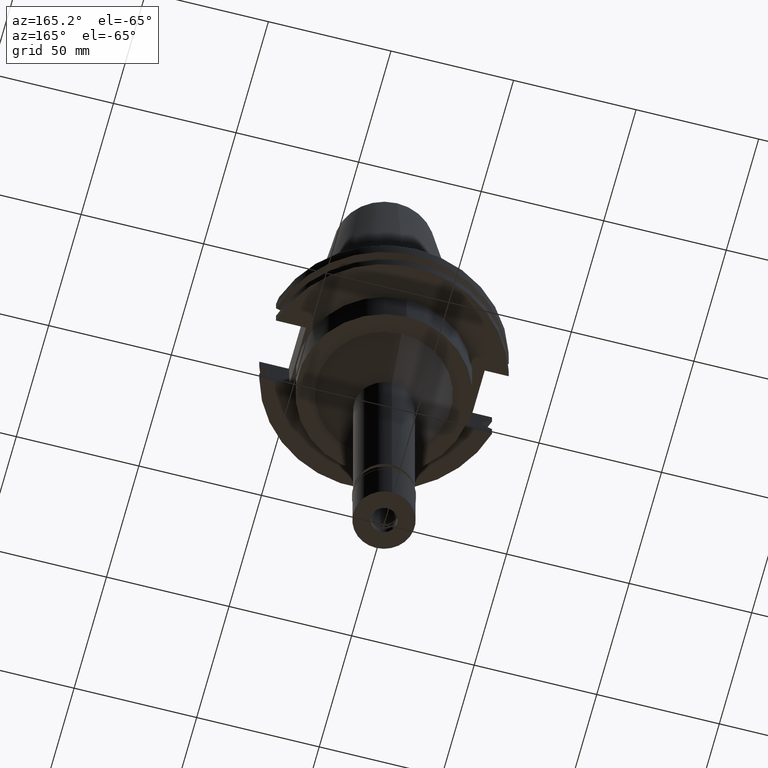
[diagram: clean part render]
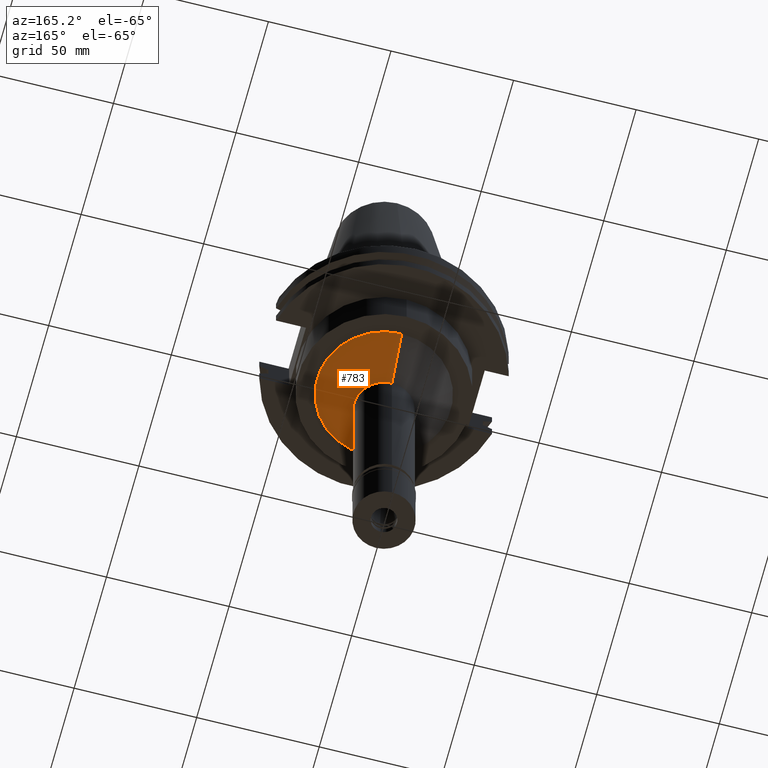
[diagram: same view with one face highlighted and labeled with its STEP entity id]
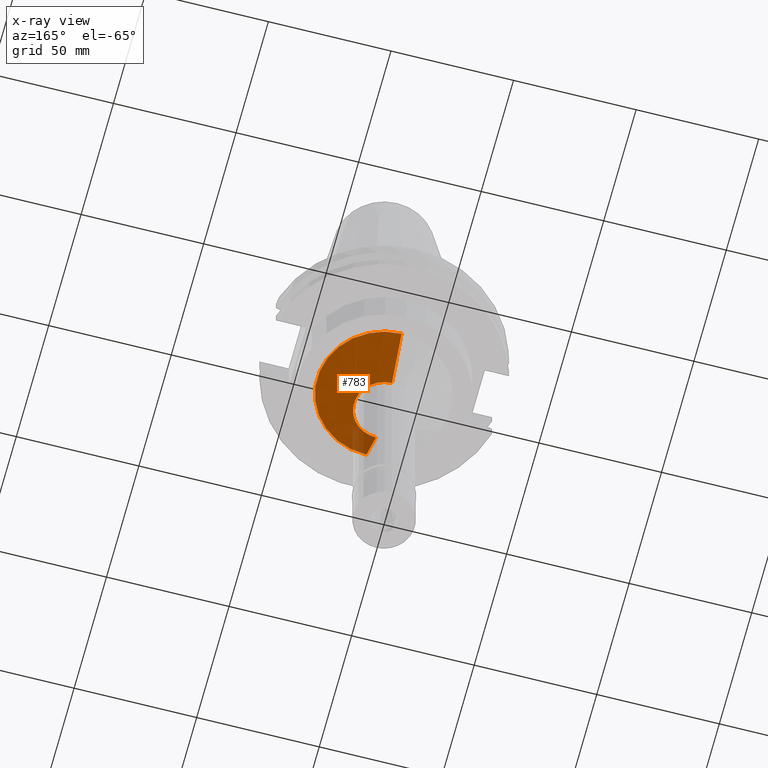
[diagram: x-ray of the same camera — body ghosted, the highlighted face saturated]
A machine part, auxiliary view. The second image highlights one B-rep face of the part: STEP entity #783.
The next image is the same camera in x-ray: the body ghosted, the highlighted face saturated — about 7% of this face is hidden behind the body in this view.
In plain terms, the highlighted conical surface has half-angle 45 deg.
Its self-contained STEP definition (entity closure, byte-faithful):
#54 = VERTEX_POINT ( 'NONE', #1603 ) ;
#218 = CARTESIAN_POINT ( 'NONE',  ( 0.0000000000000000000, 12.25000000000000000, -50.00000000000000000 ) ) ;
#398 = VERTEX_POINT ( 'NONE', #1834 ) ;
#428 = LINE ( 'NONE', #2424, #3297 ) ;
#448 = EDGE_CURVE ( 'NONE', #3223, #54, #1846, .T. ) ;
#481 = CARTESIAN_POINT ( 'NONE',  ( 0.0000000000000000000, 27.25000000000000000, -35.00000000000000000 ) ) ;
#652 = ORIENTED_EDGE ( 'NONE', *, *, #2296, .T. ) ;
#783 = ADVANCED_FACE ( 'NONE', ( #3259 ), #2229, .T. ) ;
#820 = DIRECTION ( 'NONE',  ( 0.0000000000000000000, 0.0000000000000000000, -1.000000000000000000 ) ) ;
#988 = LINE ( 'NONE', #1450, #2260 ) ;
#1027 = CARTESIAN_POINT ( 'NONE',  ( 0.0000000000000000000, 0.0000000000000000000, -50.00000000000000000 ) ) ;
#1067 = ORIENTED_EDGE ( 'NONE', *, *, #2450, .T. ) ;
#1260 = CARTESIAN_POINT ( 'NONE',  ( 0.0000000000000000000, 0.0000000000000000000, -35.00000000000000000 ) ) ;
#1307 = DIRECTION ( 'NONE',  ( 0.0000000000000000000, 1.000000000000000000, 0.0000000000000000000 ) ) ;
#1375 = CIRCLE ( 'NONE', #1862, 27.25000000000000000 ) ;
#1445 = DIRECTION ( 'NONE',  ( 0.0000000000000000000, 0.0000000000000000000, 1.000000000000000000 ) ) ;
#1450 = CARTESIAN_POINT ( 'NONE',  ( 0.0000000000000000000, -27.25000000000000000, -35.00000000000000000 ) ) ;
#1452 = DIRECTION ( 'NONE',  ( 0.0000000000000000000, -0.7071067811865474617, -0.7071067811865474617 ) ) ;
#1603 = CARTESIAN_POINT ( 'NONE',  ( 0.0000000000000000000, -12.25000000000000000, -50.00000000000000000 ) ) ;
#1733 = DIRECTION ( 'NONE',  ( 0.0000000000000000000, 1.000000000000000000, 0.0000000000000000000 ) ) ;
#1761 = CARTESIAN_POINT ( 'NONE',  ( 0.0000000000000000000, 0.0000000000000000000, -42.50000000000000000 ) ) ;
#1834 = CARTESIAN_POINT ( 'NONE',  ( 0.0000000000000000000, -27.25000000000000000, -35.00000000000000000 ) ) ;
#1846 = CIRCLE ( 'NONE', #1960, 12.25000000000000000 ) ;
#1862 = AXIS2_PLACEMENT_3D ( 'NONE', #1260, #2289, #1733 ) ;
#1960 = AXIS2_PLACEMENT_3D ( 'NONE', #1027, #820, #1307 ) ;
#1983 = ORIENTED_EDGE ( 'NONE', *, *, #448, .F. ) ;
#2119 = AXIS2_PLACEMENT_3D ( 'NONE', #1761, #1445, #2485 ) ;
#2229 = CONICAL_SURFACE ( 'NONE', #2119, 19.75000000000000000, 0.7853981633972997312 ) ;
#2260 = VECTOR ( 'NONE', #3261, 1000.000000000000114 ) ;
#2289 = DIRECTION ( 'NONE',  ( 0.0000000000000000000, 0.0000000000000000000, -1.000000000000000000 ) ) ;
#2296 = EDGE_CURVE ( 'NONE', #398, #54, #988, .T. ) ;
#2343 = ORIENTED_EDGE ( 'NONE', *, *, #3149, .F. ) ;
#2424 = CARTESIAN_POINT ( 'NONE',  ( 0.0000000000000000000, 27.25000000000000000, -35.00000000000000000 ) ) ;
#2432 = VERTEX_POINT ( 'NONE', #481 ) ;
#2450 = EDGE_CURVE ( 'NONE', #2432, #398, #1375, .T. ) ;
#2485 = DIRECTION ( 'NONE',  ( 0.0000000000000000000, 1.000000000000000000, 0.0000000000000000000 ) ) ;
#3143 = EDGE_LOOP ( 'NONE', ( #1067, #652, #1983, #2343 ) ) ;
#3149 = EDGE_CURVE ( 'NONE', #2432, #3223, #428, .T. ) ;
#3223 = VERTEX_POINT ( 'NONE', #218 ) ;
#3259 = FACE_OUTER_BOUND ( 'NONE', #3143, .T. ) ;
#3261 = DIRECTION ( 'NONE',  ( 0.0000000000000000000, 0.7071067811865474617, -0.7071067811865474617 ) ) ;
#3297 = VECTOR ( 'NONE', #1452, 1000.000000000000114 ) ;